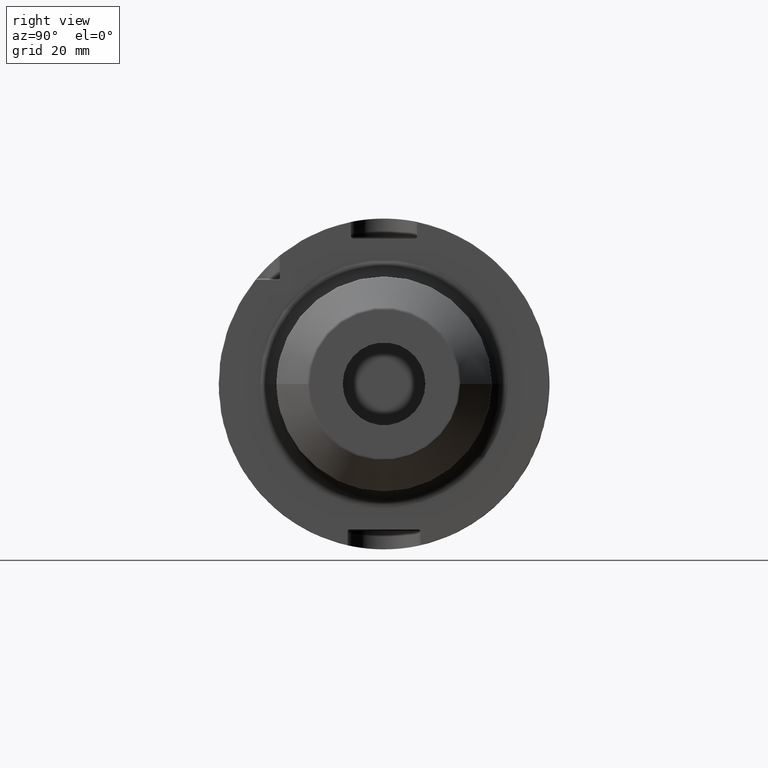
[diagram: clean part render]
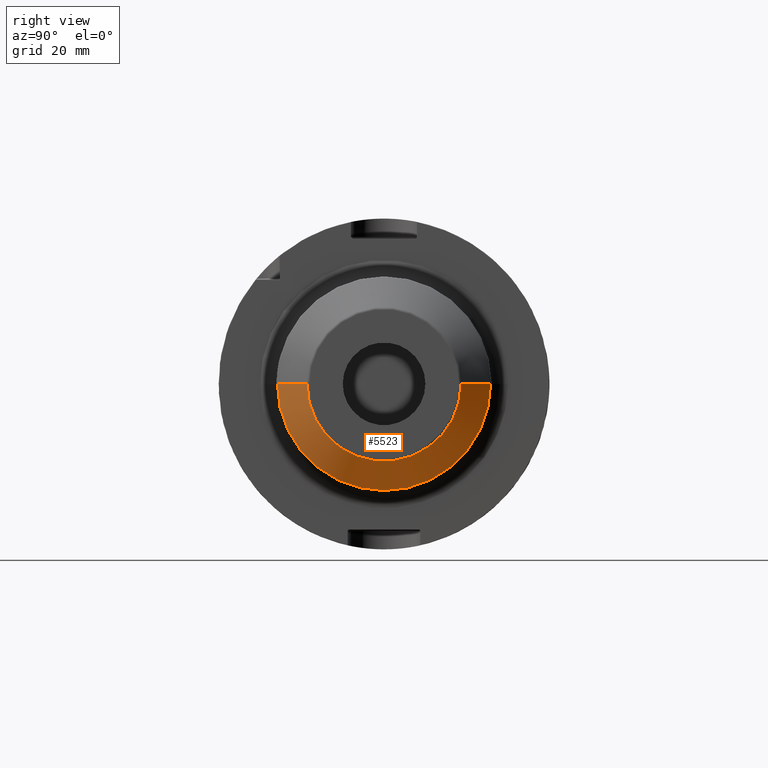
[diagram: same view with one face highlighted and labeled with its STEP entity id]
A machine part, right view. The second image highlights one B-rep face of the part: STEP entity #5523.
In plain terms, the highlighted conical surface has half-angle 45 deg.
Its self-contained STEP definition (entity closure, byte-faithful):
#2172=CARTESIAN_POINT('',(1.107928932188E2,0.E0,0.E0));
#2173=DIRECTION('',(-1.E0,0.E0,0.E0));
#2174=DIRECTION('',(0.E0,1.E0,0.E0));
#2175=AXIS2_PLACEMENT_3D('',#2172,#2173,#2174);
#2177=DIRECTION('',(-7.071067811865E-1,-7.071067811865E-1,-3.168354103355E-14));
#2178=VECTOR('',#2177,1.260660171780E1);
#2179=CARTESIAN_POINT('',(1.197071067812E2,-2.329289321881E1,
3.392721825479E-14));
#2180=LINE('',#2179,#2178);
#2181=CARTESIAN_POINT('',(1.197071067812E2,0.E0,0.E0));
#2182=DIRECTION('',(-1.E0,0.E0,0.E0));
#2183=DIRECTION('',(0.E0,1.E0,0.E0));
#2184=AXIS2_PLACEMENT_3D('',#2181,#2182,#2183);
#2186=DIRECTION('',(-7.071067811865E-1,7.071067811865E-1,3.139810455656E-14));
#2187=VECTOR('',#2186,1.260660171780E1);
#2188=CARTESIAN_POINT('',(1.197071067812E2,2.329289321881E1,
-3.464209215634E-14));
#2189=LINE('',#2188,#2187);
#3459=CARTESIAN_POINT('',(1.107928932188E2,3.220710678119E1,0.E0));
#3460=CARTESIAN_POINT('',(1.107928932188E2,-3.220710678119E1,0.E0));
#3461=VERTEX_POINT('',#3459);
#3462=VERTEX_POINT('',#3460);
#3463=CARTESIAN_POINT('',(1.197071067812E2,2.329289321881E1,0.E0));
#3464=CARTESIAN_POINT('',(1.197071067812E2,-2.329289321881E1,0.E0));
#3465=VERTEX_POINT('',#3463);
#3466=VERTEX_POINT('',#3464);
#5511=CARTESIAN_POINT('',(1.1525E2,0.E0,0.E0));
#5512=DIRECTION('',(-1.E0,0.E0,0.E0));
#5513=DIRECTION('',(0.E0,1.E0,0.E0));
#5514=AXIS2_PLACEMENT_3D('',#5511,#5512,#5513);
#5515=CONICAL_SURFACE('',#5514,2.775E1,4.5E1);
#5516=ORIENTED_EDGE('',*,*,#5476,.T.);
#5517=ORIENTED_EDGE('',*,*,#5506,.F.);
#5519=ORIENTED_EDGE('',*,*,#5518,.F.);
#5520=ORIENTED_EDGE('',*,*,#5502,.T.);
#5521=EDGE_LOOP('',(#5516,#5517,#5519,#5520));
#5522=FACE_OUTER_BOUND('',#5521,.F.);
#5523=ADVANCED_FACE('',(#5522),#5515,.T.);
#2176=CIRCLE('',#2175,3.220710678119E1);
#2185=CIRCLE('',#2184,2.329289321881E1);
#5476=EDGE_CURVE('',#3461,#3462,#2176,.T.);
#5502=EDGE_CURVE('',#3465,#3461,#2189,.T.);
#5506=EDGE_CURVE('',#3466,#3462,#2180,.T.);
#5518=EDGE_CURVE('',#3465,#3466,#2185,.T.);